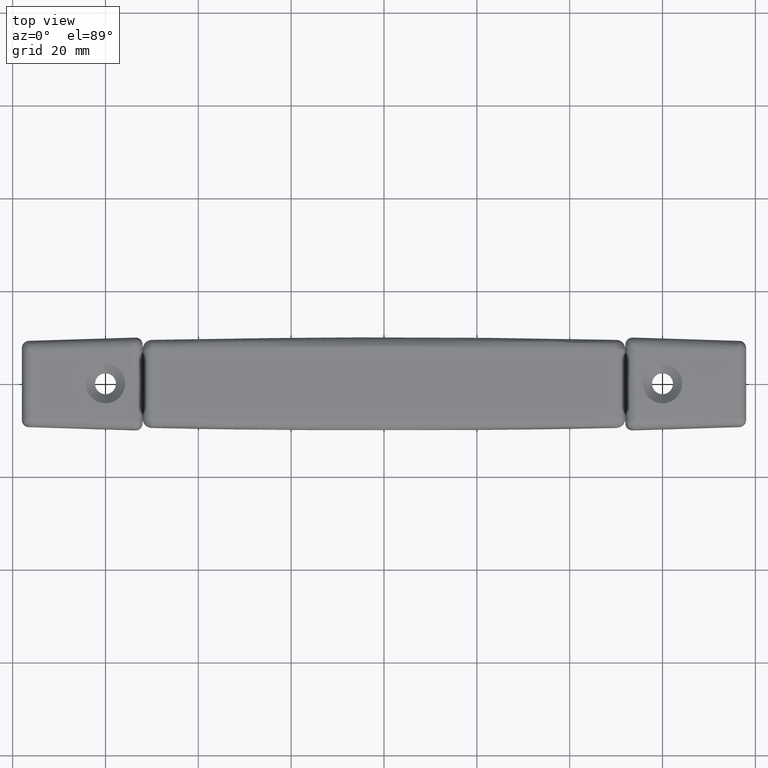
[diagram: clean part render]
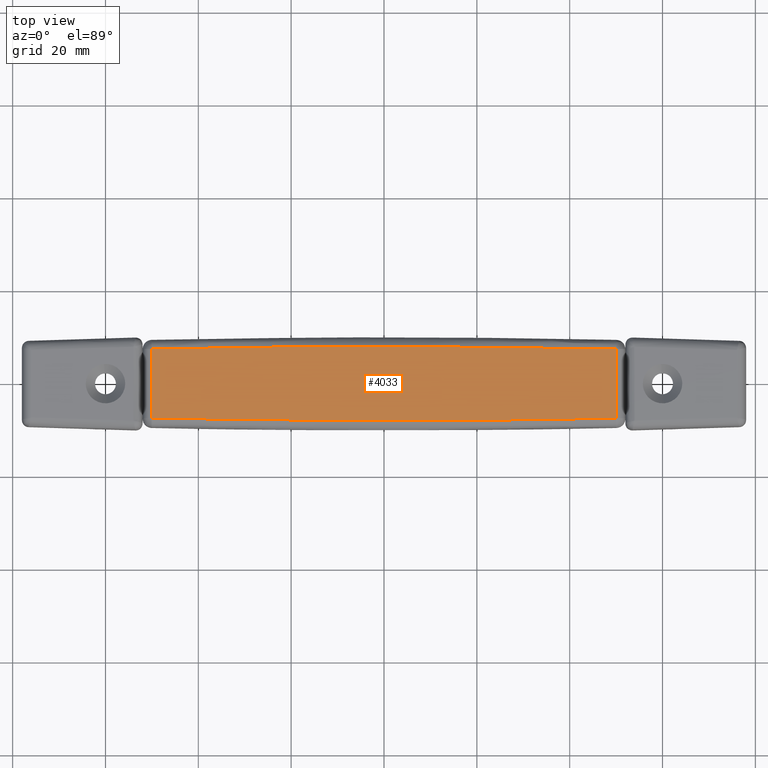
[diagram: same view with one face highlighted and labeled with its STEP entity id]
A machine part, top view. The second image highlights one B-rep face of the part: STEP entity #4033.
In plain terms, the highlighted face is a freeform B-spline surface patch.
Its self-contained STEP definition (entity closure, byte-faithful):
#3678=CARTESIAN_POINT('',(-49.999600000000001,7.453993049669090,8.0));
#3679=VERTEX_POINT('',#3678);
#3693=CARTESIAN_POINT('',(50.0,7.453984344422790,8.0));
#3694=VERTEX_POINT('',#3693);
#3695=CARTESIAN_POINT('',(50.0,7.453984344422790,8.0));
#3696=CARTESIAN_POINT('',(0.000200094725965,8.542140118592112,8.000000000000002));
#3697=CARTESIAN_POINT('',(-49.999599999998857,7.453993049669094,8.0));
#3705=(BOUNDED_CURVE()B_SPLINE_CURVE(2,(#3695,#3696,#3697),.UNSPECIFIED.,.F.,.U.)CURVE()GEOMETRIC_REPRESENTATION_ITEM()QUASI_UNIFORM_CURVE()RATIONAL_B_SPLINE_CURVE((1.0,0.999763267492191,1.0))REPRESENTATION_ITEM(''));
#3706=EDGE_CURVE('',#3694,#3679,#3705,.T.);
#3811=CARTESIAN_POINT('',(-49.999600000000001,-7.457993049668771,8.0));
#3812=VERTEX_POINT('',#3811);
#3826=CARTESIAN_POINT('',(-49.999600000000001,7.453993049669090,8.0));
#3827=CARTESIAN_POINT('',(-49.999600000000001,-7.457993049668771,8.0));
#3828=QUASI_UNIFORM_CURVE('',1,(#3826,#3827),.UNSPECIFIED.,.F.,.U.);
#3829=EDGE_CURVE('',#3679,#3812,#3828,.T.);
#3887=CARTESIAN_POINT('',(50.0,-7.457984344422460,8.0));
#3888=VERTEX_POINT('',#3887);
#3902=CARTESIAN_POINT('',(-49.999599999999987,-7.457993049668765,8.0));
#3903=CARTESIAN_POINT('',(0.000200094724259,-8.546140118591783,8.000000000000002));
#3904=CARTESIAN_POINT('',(49.999999999999829,-7.457984344422464,8.0));
#3912=(BOUNDED_CURVE()B_SPLINE_CURVE(2,(#3902,#3903,#3904),.UNSPECIFIED.,.F.,.U.)CURVE()GEOMETRIC_REPRESENTATION_ITEM()QUASI_UNIFORM_CURVE()RATIONAL_B_SPLINE_CURVE((1.0,0.999763267492191,1.0))REPRESENTATION_ITEM(''));
#3913=EDGE_CURVE('',#3812,#3888,#3912,.T.);
#4018=CARTESIAN_POINT('',(-54.994579826181393,8.797199968979625,8.0));
#4019=CARTESIAN_POINT('',(54.994982508379650,8.797199968979625,8.0));
#4020=CARTESIAN_POINT('',(-54.994579826181393,-8.801200398132741,8.0));
#4021=CARTESIAN_POINT('',(54.994982508379650,-8.801200398132741,8.0));
#4022=B_SPLINE_SURFACE_WITH_KNOTS('',1,1,((#4018,#4020),(#4019,#4021)),.UNSPECIFIED.,.F.,.F.,.U.,(2,2),(2,2),(0.0,109.989562334561000),(0.0,17.598400367112369),.UNSPECIFIED.);
#4023=ORIENTED_EDGE('',*,*,#3913,.T.);
#4024=CARTESIAN_POINT('',(50.0,-7.457984344422460,8.0));
#4025=CARTESIAN_POINT('',(50.0,7.453984344422790,8.0));
#4026=QUASI_UNIFORM_CURVE('',1,(#4024,#4025),.UNSPECIFIED.,.F.,.U.);
#4027=EDGE_CURVE('',#3888,#3694,#4026,.T.);
#4028=ORIENTED_EDGE('',*,*,#4027,.T.);
#4029=ORIENTED_EDGE('',*,*,#3706,.T.);
#4030=ORIENTED_EDGE('',*,*,#3829,.T.);
#4031=EDGE_LOOP('',(#4023,#4028,#4029,#4030));
#4032=FACE_OUTER_BOUND('',#4031,.T.);
#4033=ADVANCED_FACE('',(#4032),#4022,.F.);